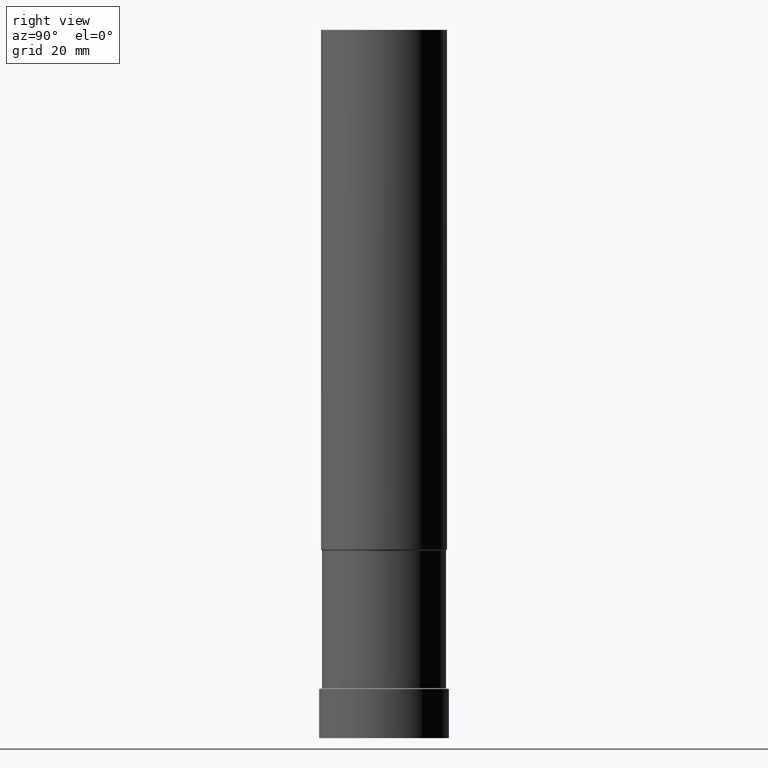
[diagram: clean part render]
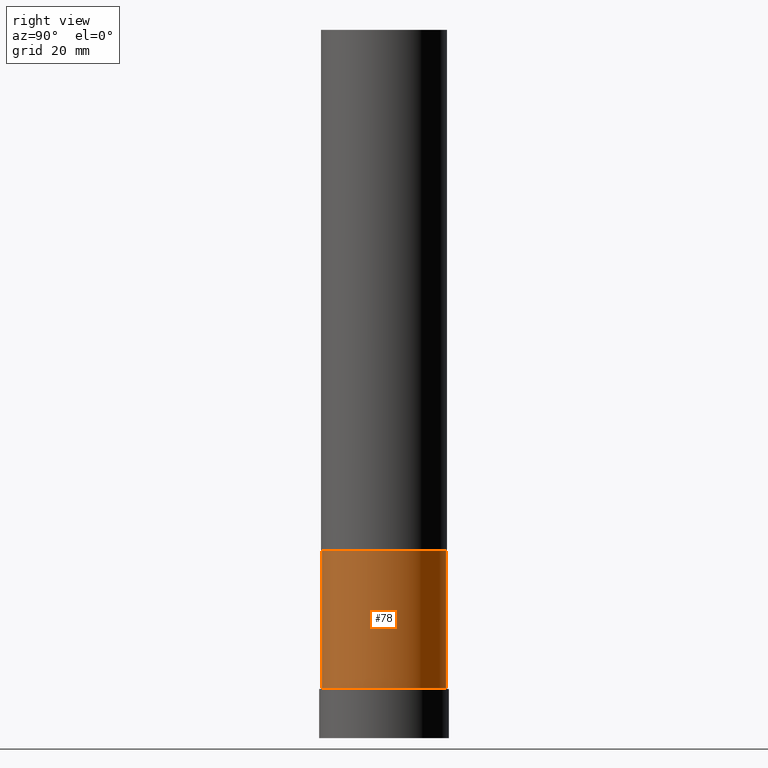
[diagram: same view with one face highlighted and labeled with its STEP entity id]
A machine part, right view. The second image highlights one B-rep face of the part: STEP entity #78.
In plain terms, the highlighted cylindrical surface (bore or boss wall) has radius 15.75 mm, axis along (0, 0, -1).
Its self-contained STEP definition (entity closure, byte-faithful):
#78=ADVANCED_FACE('',(#91,#92),#93,.T.);
#91=FACE_BOUND('',#110,.T.);
#92=FACE_BOUND('',#111,.T.);
#93=CYLINDRICAL_SURFACE('',#112,15.7499999999999);
#110=EDGE_LOOP('',(#135));
#111=EDGE_LOOP('',(#136));
#112=AXIS2_PLACEMENT_3D('',#137,#138,#139);
#135=ORIENTED_EDGE('',*,*,#157,.F.);
#136=ORIENTED_EDGE('',*,*,#156,.T.);
#137=CARTESIAN_POINT('',(-1.84586904768877E-015,-3.83739476794692E-013,30.1453292324601));
#138=DIRECTION('',(6.12323399573677E-017,1.28738160312661E-014,-1.0));
#139=DIRECTION('',(-7.93121032505865E-031,1.0,1.28738160312661E-014));
#156=EDGE_CURVE('',#164,#164,#165,.T.);
#157=EDGE_CURVE('',#166,#166,#167,.T.);
#164=VERTEX_POINT('',#176);
#165=CIRCLE('',#177,15.7499999999999);
#166=VERTEX_POINT('',#178);
#167=CIRCLE('',#179,15.7499999999999);
#176=CARTESIAN_POINT('',(-7.79100158392015E-016,15.7499999999997,12.7236711668124));
#177=AXIS2_PLACEMENT_3D('',#190,#191,#192);
#178=CARTESIAN_POINT('',(-2.91263793698554E-015,15.7499999999993,47.5669872981081));
#179=AXIS2_PLACEMENT_3D('',#193,#194,#195);
#190=CARTESIAN_POINT('',(-7.79100158392002E-016,-1.59456255897919E-013,12.7236711668122));
#191=DIRECTION('',(-6.12323399573677E-017,-1.28738160312661E-014,1.0));
#192=DIRECTION('',(-7.93121032505864E-031,1.0,1.28738160312661E-014));
#193=CARTESIAN_POINT('',(-2.91263793698553E-015,-6.08022697691466E-013,47.5669872981079));
#194=DIRECTION('',(-6.12323399573676E-017,-1.28738160312661E-014,1.0));
#195=DIRECTION('',(-7.93121032505865E-031,1.0,1.28738160312661E-014));